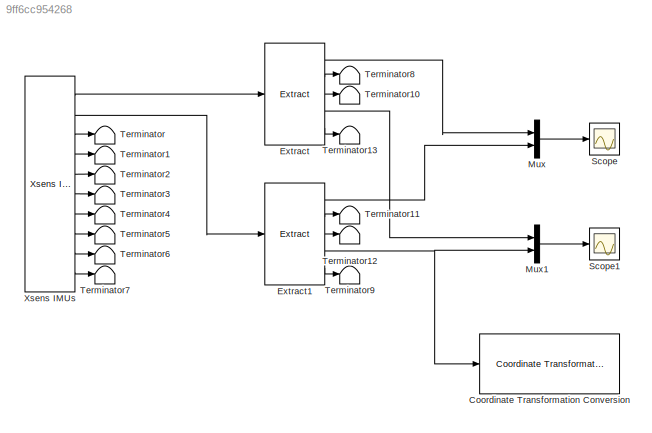
MODEL slx_9ff6cc954268
KIND model
CONFIG AbsTol = auto
CONFIG EnableMultiTasking = off
CONFIG FixedStep = auto
CONFIG MaxStep = auto
CONFIG MinStep = auto
CONFIG RelTol = 1e-3
CONFIG SampleTimeConstraint = Unconstrained
CONFIG Solver = FixedStepAuto
CONFIG SolverName = FixedStepAuto
CONFIG StartTime = 0.0
CONFIG StopTime = Inf
BLOCK [Reference] Coordinate Transformation Conversion  REF=robotcorelib/Coordinate Transformation Conversion
  Ports = [1, 1]
  SourceBlock = robotcorelib/Coordinate Transformation Conversion
  SourceProductBaseCode = RO
  SourceProductName = Robotics System Toolbox
  SourceType = robotics.slcore.internal.block.CoordinateTransformationConversion
BLOCK [Reference] Extract  REF=XsensLibrary/Extract
  Ports = [1, 5]
  SourceBlock = XsensLibrary/Extract
BLOCK [Reference] Extract1  REF=XsensLibrary/Extract
  Ports = [1, 5]
  SourceBlock = XsensLibrary/Extract
BLOCK [Mux] Mux
  DisplayOption = bar
  Inputs = 2
  Ports = [2, 1]
BLOCK [Mux] Mux1
  DisplayOption = bar
  Inputs = 2
  Ports = [2, 1]
BLOCK [Scope] Scope
  NumInputPorts = 1
  Ports = [1]
  ScopeSpecificationString = Simulink.scopes.TimeScopeBlockCfg('CurrentConfiguration', extmgr.ConfigurationSet(extmgr.Configuration('Core','General UI',true),extmgr.Configuration('Core','Source UI',true),extmgr.Configuration('Sources','WiredSimulink',true),extmgr.Configuration('Visuals','Time Domain',true,'SerializedDisplays',{struct('MinYLimReal','-1.51702','MaxYLimReal','11.13084','YLabelReal','','MinYLimMag','0.00000','Max...<+1435ch>
BLOCK [Scope] Scope1
  NumInputPorts = 1
  Ports = [1]
  ScopeSpecificationString = Simulink.scopes.TimeScopeBlockCfg('CurrentConfiguration', extmgr.ConfigurationSet(extmgr.Configuration('Core','General UI',true),extmgr.Configuration('Core','Source UI',true),extmgr.Configuration('Sources','WiredSimulink',true,'DataLoggingVariableName','ScopeData1'),extmgr.Configuration('Visuals','Time Domain',true,'SerializedDisplays',{struct('MinYLimReal','-0.77597','MaxYLimReal','0.67921','YLab...<+1416ch>
BLOCK [Terminator] Terminator
BLOCK [Terminator] Terminator1
BLOCK [Terminator] Terminator10
BLOCK [Terminator] Terminator11
BLOCK [Terminator] Terminator12
BLOCK [Terminator] Terminator13
BLOCK [Terminator] Terminator2
BLOCK [Terminator] Terminator3
BLOCK [Terminator] Terminator4
BLOCK [Terminator] Terminator5
BLOCK [Terminator] Terminator6
BLOCK [Terminator] Terminator7
BLOCK [Terminator] Terminator8
BLOCK [Terminator] Terminator9
BLOCK [Reference] Xsens IMUs  REF=XsensLibrary/Xsens IMUs
  Ports = [0, 10]
  SourceBlock = XsensLibrary/Xsens IMUs
LINE Extract1:1 -> Mux:2
LINE Extract1:2 -> Terminator11:1
LINE Extract1:3 -> Terminator12:1
NET Extract1:4 -> Coordinate Transformation Conversion:1, Mux1:2
LINE Extract1:5 -> Terminator9:1
LINE Extract:1 -> Mux:1
LINE Extract:2 -> Terminator8:1
LINE Extract:3 -> Terminator10:1
LINE Extract:4 -> Mux1:1
LINE Extract:5 -> Terminator13:1
LINE Mux1:1 -> Scope1:1
LINE Mux:1 -> Scope:1
LINE Xsens IMUs:1 -> Extract:1
LINE Xsens IMUs:10 -> Terminator7:1
LINE Xsens IMUs:2 -> Extract1:1
LINE Xsens IMUs:3 -> Terminator:1
LINE Xsens IMUs:4 -> Terminator1:1
LINE Xsens IMUs:5 -> Terminator2:1
LINE Xsens IMUs:6 -> Terminator3:1
LINE Xsens IMUs:7 -> Terminator4:1
LINE Xsens IMUs:8 -> Terminator5:1
LINE Xsens IMUs:9 -> Terminator6:1
note: NET lines group one-source signal fan-out (src -> all destinations, sorted); 1:1 wires keep LINE
